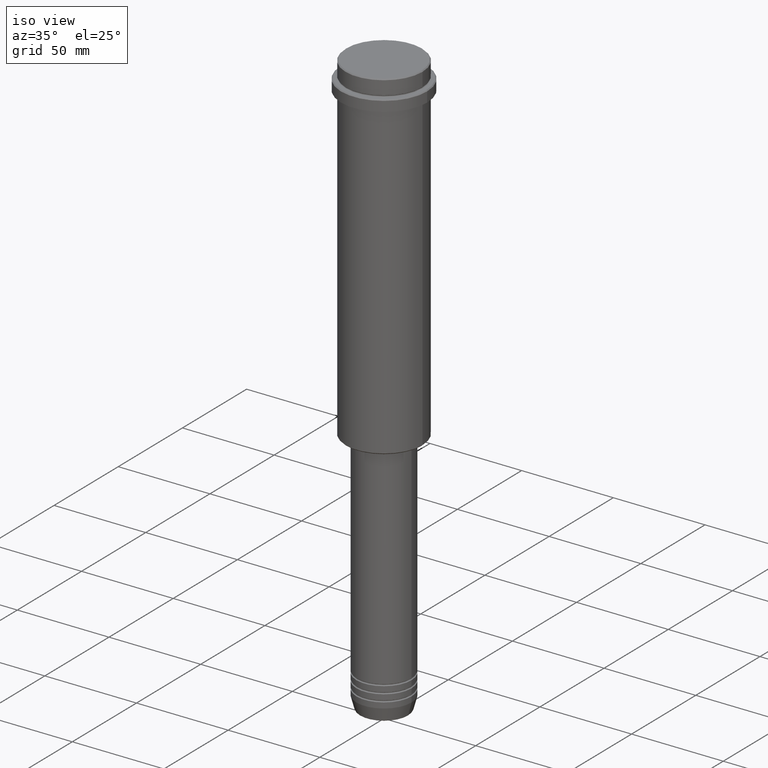
[diagram: clean part render]
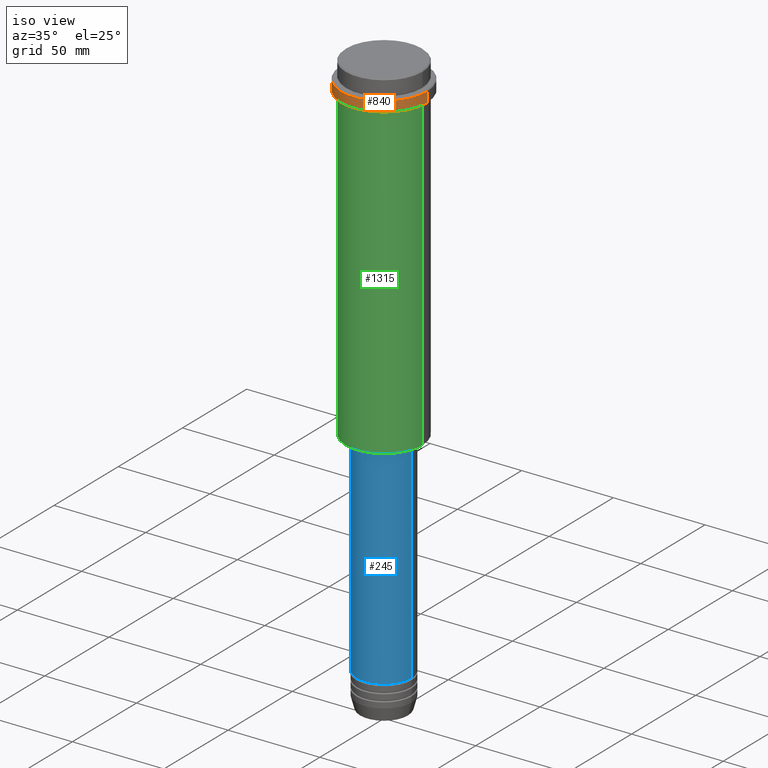
[diagram: same view with three faces highlighted in distinct colors, each labeled with its STEP entity id]
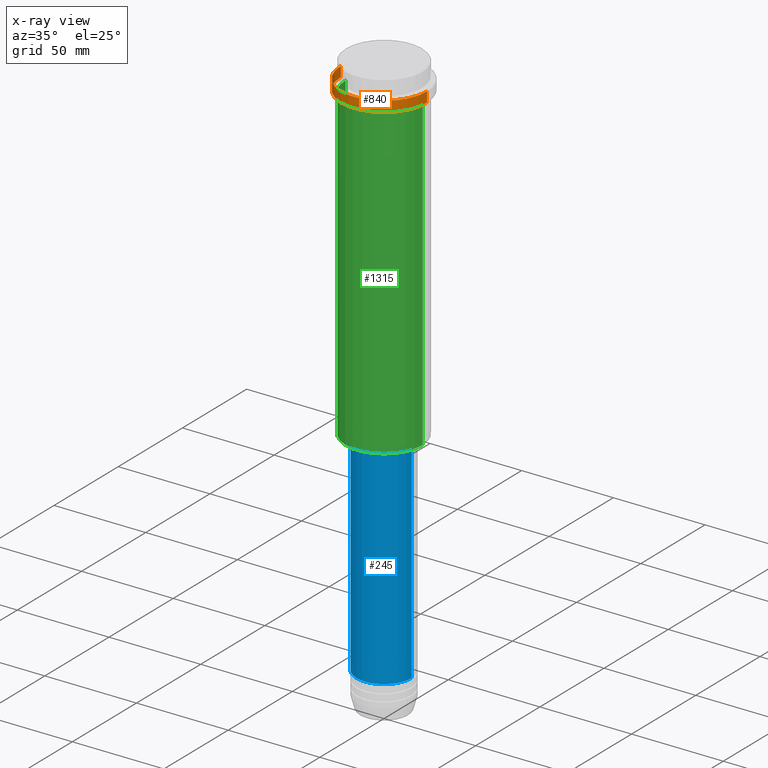
[diagram: x-ray of the same camera — body ghosted, the three highlighted faces saturated]
A machine part, iso view with three faces highlighted in distinct colors.
The next image is the same camera in x-ray (body ghosted, the three faces saturated) — at least one of them is partly hidden behind the body in this view.
Their STEP definitions:

[orange] entity #840 — the highlighted cylindrical surface (partial cylindrical patch) has radius 23.5 mm, axis along (-0, -0, 1).
#4 = CARTESIAN_POINT ( 'NONE',  ( -23.50000000000000000, 2.877919977996280320E-15, 0.000000000000000000 ) ) ;
#17 = LINE ( 'NONE', #4, #248 ) ;
#44 = VERTEX_POINT ( 'NONE', #418 ) ;
#130 = CARTESIAN_POINT ( 'NONE',  ( 23.50000000000000000, 0.000000000000000000, 0.000000000000000000 ) ) ;
#144 = CARTESIAN_POINT ( 'NONE',  ( 23.50000000000000355, 0.000000000000000000, -15.00000000000000178 ) ) ;
#248 = VECTOR ( 'NONE', #453, 1000.000000000000000 ) ;
#254 = EDGE_CURVE ( 'NONE', #642, #660, #378, .T. ) ;
#262 = ORIENTED_EDGE ( 'NONE', *, *, #1105, .F. ) ;
#329 = ORIENTED_EDGE ( 'NONE', *, *, #347, .T. ) ;
#347 = EDGE_CURVE ( 'NONE', #44, #433, #1255, .T. ) ;
#363 = ORIENTED_EDGE ( 'NONE', *, *, #254, .T. ) ;
#378 = CIRCLE ( 'NONE', #1046, 23.50000000000000000 ) ;
#394 = EDGE_LOOP ( 'NONE', ( #262, #329, #781, #363 ) ) ;
#418 = CARTESIAN_POINT ( 'NONE',  ( -23.50000000000000711, 2.877919977996281109E-15, -15.00000000000000178 ) ) ;
#433 = VERTEX_POINT ( 'NONE', #144 ) ;
#453 = DIRECTION ( 'NONE',  ( -0.000000000000000000, -0.000000000000000000, 1.000000000000000000 ) ) ;
#465 = DIRECTION ( 'NONE',  ( 1.000000000000000000, 0.000000000000000000, 0.000000000000000000 ) ) ;
#508 = DIRECTION ( 'NONE',  ( -0.000000000000000000, -0.000000000000000000, 1.000000000000000000 ) ) ;
#595 = CARTESIAN_POINT ( 'NONE',  ( 0.000000000000000000, 0.000000000000000000, -15.00000000000000178 ) ) ;
#642 = VERTEX_POINT ( 'NONE', #652 ) ;
#652 = CARTESIAN_POINT ( 'NONE',  ( 23.50000000000000000, 0.000000000000000000, -9.499999999999973355 ) ) ;
#657 = AXIS2_PLACEMENT_3D ( 'NONE', #595, #508, #824 ) ;
#660 = VERTEX_POINT ( 'NONE', #1311 ) ;
#675 = EDGE_CURVE ( 'NONE', #433, #642, #897, .T. ) ;
#695 = CYLINDRICAL_SURFACE ( 'NONE', #750, 23.50000000000000000 ) ;
#750 = AXIS2_PLACEMENT_3D ( 'NONE', #915, #1156, #1363 ) ;
#781 = ORIENTED_EDGE ( 'NONE', *, *, #675, .T. ) ;
#824 = DIRECTION ( 'NONE',  ( 1.000000000000000000, 0.000000000000000000, 0.000000000000000000 ) ) ;
#840 = ADVANCED_FACE ( 'NONE', ( #903 ), #695, .T. ) ;
#897 = LINE ( 'NONE', #130, #1210 ) ;
#903 = FACE_OUTER_BOUND ( 'NONE', #394, .T. ) ;
#915 = CARTESIAN_POINT ( 'NONE',  ( 0.000000000000000000, 0.000000000000000000, 0.000000000000000000 ) ) ;
#986 = CARTESIAN_POINT ( 'NONE',  ( 0.000000000000000000, 0.000000000000000000, -9.499999999999973355 ) ) ;
#1046 = AXIS2_PLACEMENT_3D ( 'NONE', #986, #1116, #465 ) ;
#1100 = DIRECTION ( 'NONE',  ( -0.000000000000000000, -0.000000000000000000, 1.000000000000000000 ) ) ;
#1105 = EDGE_CURVE ( 'NONE', #44, #660, #17, .T. ) ;
#1116 = DIRECTION ( 'NONE',  ( 0.000000000000000000, 0.000000000000000000, -1.000000000000000000 ) ) ;
#1156 = DIRECTION ( 'NONE',  ( -0.000000000000000000, -0.000000000000000000, 1.000000000000000000 ) ) ;
#1210 = VECTOR ( 'NONE', #1100, 1000.000000000000000 ) ;
#1255 = CIRCLE ( 'NONE', #657, 23.50000000000000355 ) ;
#1311 = CARTESIAN_POINT ( 'NONE',  ( -23.50000000000000000, 2.877919977996280320E-15, -9.499999999999973355 ) ) ;
#1363 = DIRECTION ( 'NONE',  ( 1.000000000000000000, 0.000000000000000000, 0.000000000000000000 ) ) ;

[blue] entity #245 — the highlighted cylindrical surface (edge-blend (fillet) strip) has radius 15 mm, axis along (-0, -0, 1).
#40 = LINE ( 'NONE', #615, #1090 ) ;
#99 = DIRECTION ( 'NONE',  ( -0.000000000000000000, -0.000000000000000000, 1.000000000000000000 ) ) ;
#123 = CYLINDRICAL_SURFACE ( 'NONE', #1300, 15.00000000000000000 ) ;
#135 = ORIENTED_EDGE ( 'NONE', *, *, #1197, .T. ) ;
#192 = EDGE_CURVE ( 'NONE', #370, #596, #906, .T. ) ;
#193 = ORIENTED_EDGE ( 'NONE', *, *, #396, .F. ) ;
#219 = CARTESIAN_POINT ( 'NONE',  ( 0.000000000000000000, 0.000000000000000000, 0.000000000000000000 ) ) ;
#245 = ADVANCED_FACE ( 'NONE', ( #440 ), #123, .T. ) ;
#317 = AXIS2_PLACEMENT_3D ( 'NONE', #651, #984, #1340 ) ;
#333 = DIRECTION ( 'NONE',  ( 1.000000000000000000, 0.000000000000000000, 0.000000000000000000 ) ) ;
#370 = VERTEX_POINT ( 'NONE', #922 ) ;
#396 = EDGE_CURVE ( 'NONE', #545, #370, #40, .T. ) ;
#425 = AXIS2_PLACEMENT_3D ( 'NONE', #1348, #1232, #666 ) ;
#440 = FACE_OUTER_BOUND ( 'NONE', #1053, .T. ) ;
#545 = VERTEX_POINT ( 'NONE', #1383 ) ;
#575 = ORIENTED_EDGE ( 'NONE', *, *, #192, .F. ) ;
#596 = VERTEX_POINT ( 'NONE', #1388 ) ;
#615 = CARTESIAN_POINT ( 'NONE',  ( -15.00000000000000000, 1.836970198721029589E-15, 0.000000000000000000 ) ) ;
#651 = CARTESIAN_POINT ( 'NONE',  ( 0.000000000000000000, 0.000000000000000000, -300.9999999999998863 ) ) ;
#661 = CIRCLE ( 'NONE', #317, 15.00000000000000000 ) ;
#666 = DIRECTION ( 'NONE',  ( 1.000000000000000000, 0.000000000000000000, 0.000000000000000000 ) ) ;
#764 = VERTEX_POINT ( 'NONE', #805 ) ;
#805 = CARTESIAN_POINT ( 'NONE',  ( 15.00000000000000000, 0.000000000000000000, -300.9999999999998863 ) ) ;
#896 = LINE ( 'NONE', #1192, #1395 ) ;
#906 = CIRCLE ( 'NONE', #425, 15.00000000000000000 ) ;
#922 = CARTESIAN_POINT ( 'NONE',  ( -15.00000000000000000, 1.836970198721029589E-15, -185.9999999999999147 ) ) ;
#984 = DIRECTION ( 'NONE',  ( -0.000000000000000000, -0.000000000000000000, 1.000000000000000000 ) ) ;
#1053 = EDGE_LOOP ( 'NONE', ( #193, #1127, #135, #575 ) ) ;
#1090 = VECTOR ( 'NONE', #1365, 1000.000000000000000 ) ;
#1094 = DIRECTION ( 'NONE',  ( -0.000000000000000000, -0.000000000000000000, 1.000000000000000000 ) ) ;
#1103 = EDGE_CURVE ( 'NONE', #545, #764, #661, .T. ) ;
#1127 = ORIENTED_EDGE ( 'NONE', *, *, #1103, .T. ) ;
#1192 = CARTESIAN_POINT ( 'NONE',  ( 15.00000000000000000, 0.000000000000000000, 0.000000000000000000 ) ) ;
#1197 = EDGE_CURVE ( 'NONE', #764, #596, #896, .T. ) ;
#1232 = DIRECTION ( 'NONE',  ( -0.000000000000000000, -0.000000000000000000, 1.000000000000000000 ) ) ;
#1300 = AXIS2_PLACEMENT_3D ( 'NONE', #219, #1094, #333 ) ;
#1340 = DIRECTION ( 'NONE',  ( 1.000000000000000000, 0.000000000000000000, 0.000000000000000000 ) ) ;
#1348 = CARTESIAN_POINT ( 'NONE',  ( 0.000000000000000000, 0.000000000000000000, -185.9999999999999147 ) ) ;
#1365 = DIRECTION ( 'NONE',  ( -0.000000000000000000, -0.000000000000000000, 1.000000000000000000 ) ) ;
#1383 = CARTESIAN_POINT ( 'NONE',  ( -15.00000000000000000, 1.836970198721029589E-15, -300.9999999999998863 ) ) ;
#1388 = CARTESIAN_POINT ( 'NONE',  ( 15.00000000000000000, 0.000000000000000000, -185.9999999999999147 ) ) ;
#1395 = VECTOR ( 'NONE', #99, 1000.000000000000000 ) ;

[green] entity #1315 — the highlighted cylindrical surface (partial cylindrical patch) has radius 21 mm, axis along (-0, -0, 1).
#1 = EDGE_CURVE ( 'NONE', #482, #1366, #274, .T. ) ;
#41 = VECTOR ( 'NONE', #73, 1000.000000000000000 ) ;
#43 = AXIS2_PLACEMENT_3D ( 'NONE', #1356, #72, #408 ) ;
#72 = DIRECTION ( 'NONE',  ( -0.000000000000000000, -0.000000000000000000, 1.000000000000000000 ) ) ;
#73 = DIRECTION ( 'NONE',  ( -0.000000000000000000, -0.000000000000000000, 1.000000000000000000 ) ) ;
#164 = DIRECTION ( 'NONE',  ( -0.000000000000000000, -0.000000000000000000, 1.000000000000000000 ) ) ;
#206 = DIRECTION ( 'NONE',  ( 1.000000000000000000, 0.000000000000000000, 0.000000000000000000 ) ) ;
#274 = LINE ( 'NONE', #712, #311 ) ;
#309 = DIRECTION ( 'NONE',  ( -0.000000000000000000, -0.000000000000000000, 1.000000000000000000 ) ) ;
#311 = VECTOR ( 'NONE', #164, 1000.000000000000000 ) ;
#345 = ORIENTED_EDGE ( 'NONE', *, *, #920, .T. ) ;
#389 = ORIENTED_EDGE ( 'NONE', *, *, #571, .F. ) ;
#408 = DIRECTION ( 'NONE',  ( -1.000000000000000000, 0.000000000000000000, 0.000000000000000000 ) ) ;
#410 = CARTESIAN_POINT ( 'NONE',  ( -20.99999999999999645, 2.571758278209441267E-15, -16.00000000000000355 ) ) ;
#455 = CIRCLE ( 'NONE', #43, 20.99999999999999645 ) ;
#475 = CYLINDRICAL_SURFACE ( 'NONE', #1261, 20.99999999999999645 ) ;
#482 = VERTEX_POINT ( 'NONE', #966 ) ;
#514 = CARTESIAN_POINT ( 'NONE',  ( -20.99999999999999645, 2.571758278209441267E-15, -184.5000000000000284 ) ) ;
#530 = VERTEX_POINT ( 'NONE', #410 ) ;
#532 = LINE ( 'NONE', #1057, #41 ) ;
#571 = EDGE_CURVE ( 'NONE', #584, #530, #532, .T. ) ;
#584 = VERTEX_POINT ( 'NONE', #514 ) ;
#632 = CARTESIAN_POINT ( 'NONE',  ( 0.000000000000000000, 0.000000000000000000, -16.00000000000000355 ) ) ;
#712 = CARTESIAN_POINT ( 'NONE',  ( 20.99999999999999645, 0.000000000000000000, 0.000000000000000000 ) ) ;
#803 = CARTESIAN_POINT ( 'NONE',  ( 0.000000000000000000, 0.000000000000000000, 0.000000000000000000 ) ) ;
#873 = ORIENTED_EDGE ( 'NONE', *, *, #1, .T. ) ;
#920 = EDGE_CURVE ( 'NONE', #584, #482, #455, .T. ) ;
#966 = CARTESIAN_POINT ( 'NONE',  ( 20.99999999999999645, 0.000000000000000000, -184.5000000000000284 ) ) ;
#989 = ORIENTED_EDGE ( 'NONE', *, *, #1067, .F. ) ;
#1057 = CARTESIAN_POINT ( 'NONE',  ( -20.99999999999999645, 2.571758278209441267E-15, 0.000000000000000000 ) ) ;
#1067 = EDGE_CURVE ( 'NONE', #530, #1366, #1330, .T. ) ;
#1128 = FACE_OUTER_BOUND ( 'NONE', #1151, .T. ) ;
#1141 = AXIS2_PLACEMENT_3D ( 'NONE', #632, #309, #206 ) ;
#1151 = EDGE_LOOP ( 'NONE', ( #389, #345, #873, #989 ) ) ;
#1202 = CARTESIAN_POINT ( 'NONE',  ( 20.99999999999999645, 0.000000000000000000, -16.00000000000000355 ) ) ;
#1243 = DIRECTION ( 'NONE',  ( -0.000000000000000000, -0.000000000000000000, 1.000000000000000000 ) ) ;
#1261 = AXIS2_PLACEMENT_3D ( 'NONE', #803, #1243, #1361 ) ;
#1315 = ADVANCED_FACE ( 'NONE', ( #1128 ), #475, .T. ) ;
#1330 = CIRCLE ( 'NONE', #1141, 20.99999999999999645 ) ;
#1356 = CARTESIAN_POINT ( 'NONE',  ( 0.000000000000000000, 0.000000000000000000, -184.5000000000000284 ) ) ;
#1361 = DIRECTION ( 'NONE',  ( 1.000000000000000000, 0.000000000000000000, 0.000000000000000000 ) ) ;
#1366 = VERTEX_POINT ( 'NONE', #1202 ) ;